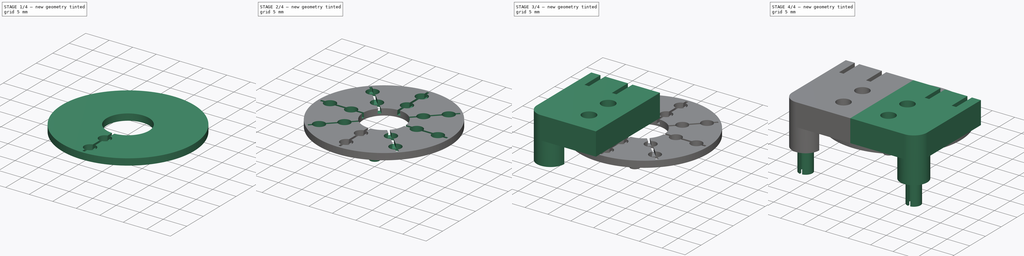
[diagram: build sequence overview — one tinted view per stage of 4, left to right]
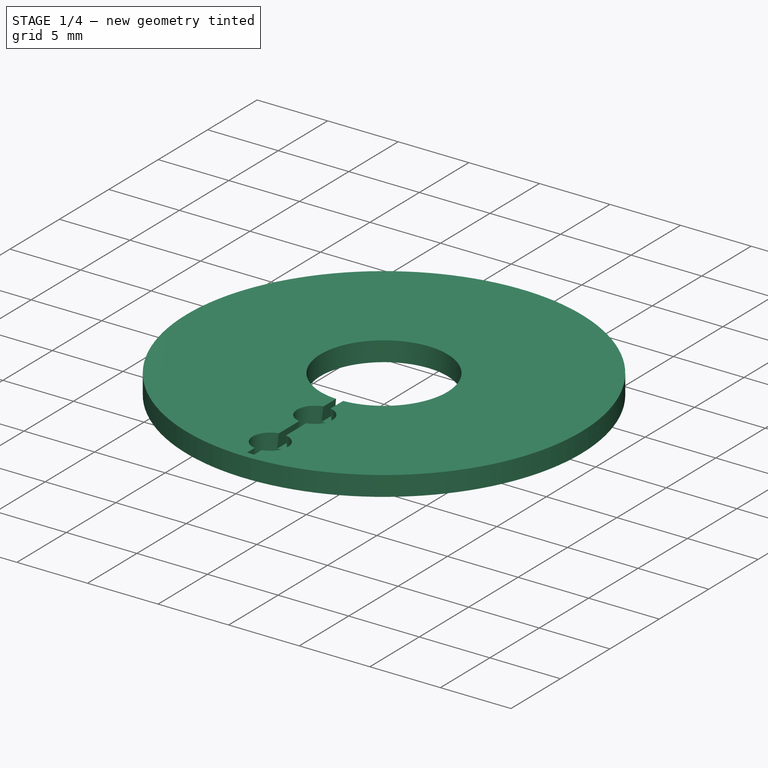
[diagram: stage 1 of 4 — iso view after this stage's code; geometry added in this stage tinted green]
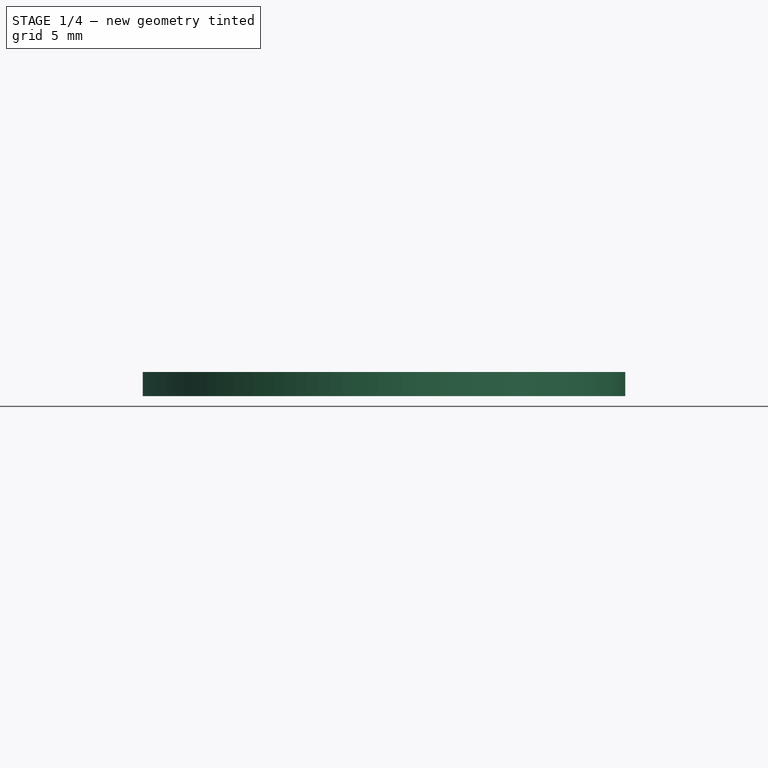
[diagram: stage 1 of 4 — front view after this stage's code; geometry added in this stage tinted green]
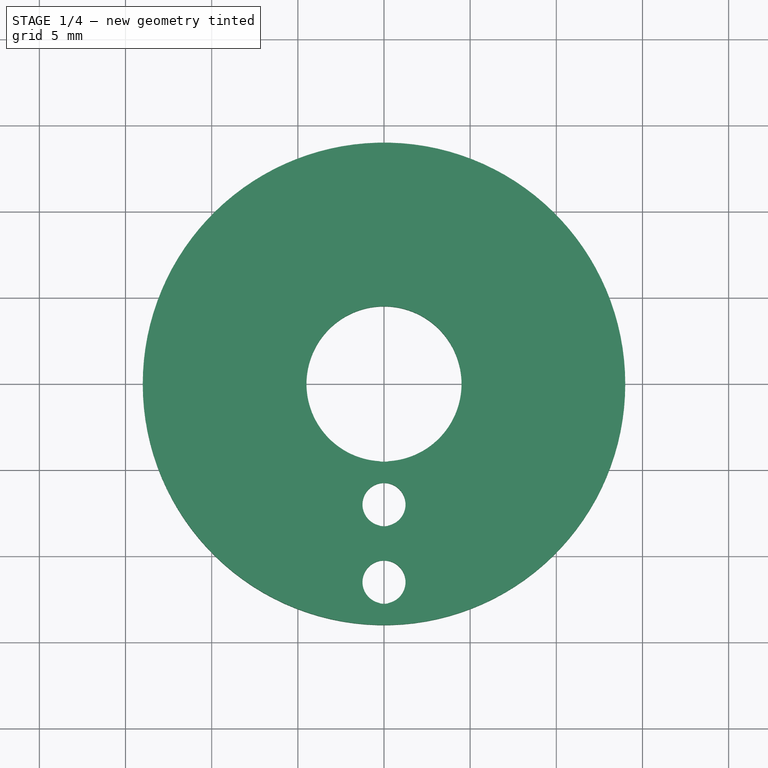
[diagram: stage 1 of 4 — top view after this stage's code; geometry added in this stage tinted green]
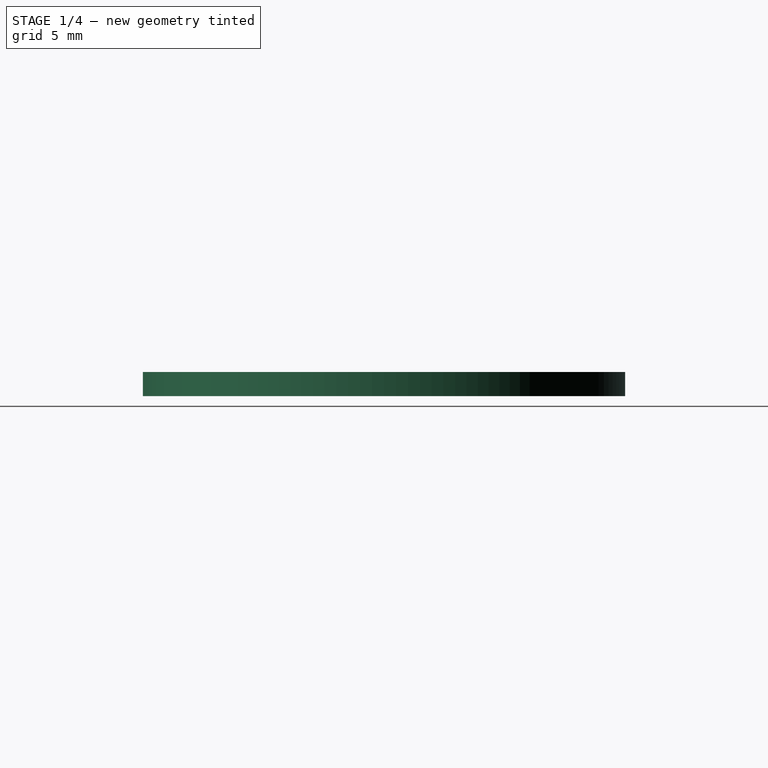
[diagram: stage 1 of 4 — right view after this stage's code; geometry added in this stage tinted green]
FCSTD DOCUMENT  (FreeCAD 0.21R33694 (Git))
Label: sparkgap
License: All rights reserved
LicenseURL: https://en.wikipedia.org/wiki/All_rights_reserved
objects: Sketcher::SketchObject×8, PartDesign::Pad×5, PartDesign::Pocket×3, PartDesign::Body×2, PartDesign::PolarPattern×2, PartDesign::Mirrored×1
note: 29 computed .brp shape members not serialized (recipe doc carries the construction recipe); baked Part::Feature solids carry a one-line shape summary decoded from their .brp

FEATURE [PartDesign::Body] Body
  Group = -> [Sketch,Pad,Sketch001,Pad001,Sketch002,Pad002,Sketch003,Pocket,Mirrored]
  Origin = -> Origin
  Tip = -> Mirrored
FEATURE [Sketcher::SketchObject] Sketch004
  FullyConstrained = true
  MapMode = 5
  Support = -> [XY_Plane001]
  sketch-geometry (2):
    g0: Circle CenterX=0 CenterY=15 CenterZ=0 NormalX=0 NormalY=0 NormalZ=1 AngleXU=0 Radius=14
    g1: Circle CenterX=0 CenterY=15 CenterZ=0 NormalX=0 NormalY=0 NormalZ=1 AngleXU=0 Radius=4.5
  constraints (5):
    c: PointOnObject(g0,g-2)
    c: Distance(g0,g-1) = 15
    c: Diameter(g0) = 28
    c: Coincident(g1,g0)
    c: Diameter(g1) = 9
FEATURE [PartDesign::Pad] Pad003  label="disc"
  Direction = (0,0,1)
  Length = 1.4
  Length2 = 10
  Profile = -> Sketch004
  ReferenceAxis = -> Sketch004 [N_Axis]
  Reversed = true
  Type = 0
FEATURE [Sketcher::SketchObject] Sketch005
  FullyConstrained = true
  MapMode = 5
  Support = -> [XY_Plane001]
  sketch-geometry (4):
    g0: LineSegment StartX=-0.25 StartY=1.5 StartZ=0 EndX=0.25 EndY=1.5 EndZ=0
    g1: LineSegment StartX=0.25 StartY=1.5 StartZ=0 EndX=0.25 EndY=11.5 EndZ=0
    g2: LineSegment StartX=0.25 StartY=11.5 StartZ=0 EndX=-0.25 EndY=11.5 EndZ=0
    g3: LineSegment StartX=-0.25 StartY=11.5 StartZ=0 EndX=-0.25 EndY=1.5 EndZ=0
  constraints (11):
    c: Horizontal(g0)
    c: Coincident(g1,g0)
    c: Vertical(g1)
    c: Coincident(g2,g1)
    c: Coincident(g3,g2)
    c: Coincident(g3,g0)
    c: Vertical(g3)
    c: Distance(g2) = 0.5
    c: Symmetric(g1,g2,g-2)
    c: Distance(g1) = 10
    c: Distance(g0,g-1) = 1.5
FEATURE [PartDesign::Pocket] Pocket001  label="slot"
  BaseFeature = -> Pad003
  Direction = (0,0,-1)
  Length = 1
  Length2 = 5
  Profile = -> Sketch005
  ReferenceAxis = -> Sketch005 [N_Axis]
  TaperAngle = 6
  Type = 0
FEATURE [Sketcher::SketchObject] Sketch006
  FullyConstrained = true
  MapMode = 5
  Support = -> [XY_Plane001]
  sketch-geometry (2):
    g0: Circle CenterX=0 CenterY=3.5 CenterZ=0 NormalX=0 NormalY=0 NormalZ=1 AngleXU=0 Radius=1.25
    g1: Circle CenterX=0 CenterY=8 CenterZ=0 NormalX=0 NormalY=0 NormalZ=1 AngleXU=0 Radius=1.25
  constraints (6):
    c: PointOnObject(g0,g-2)
    c: Diameter(g0) = 2.5
    c: Distance(g0,g-1) = 3.5
    c: PointOnObject(g1,g-2)
    c: Distance(g1,g-1) = 8
    c: Diameter(g1) = 2.5
FEATURE [PartDesign::Pocket] Pocket002  label="hole"
  BaseFeature = -> Pocket001
  Direction = (0,0,-1)
  Length = 1.5
  Length2 = 5
  Profile = -> Sketch006
  ReferenceAxis = -> Sketch006 [N_Axis]
  Type = 0
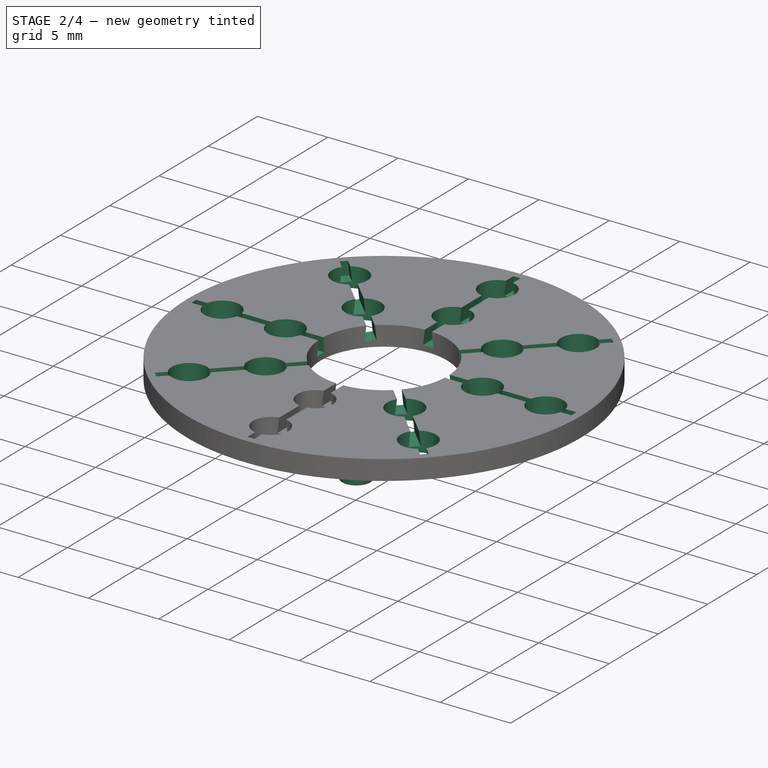
[diagram: stage 2 of 4 — iso view after this stage's code; geometry added in this stage tinted green]
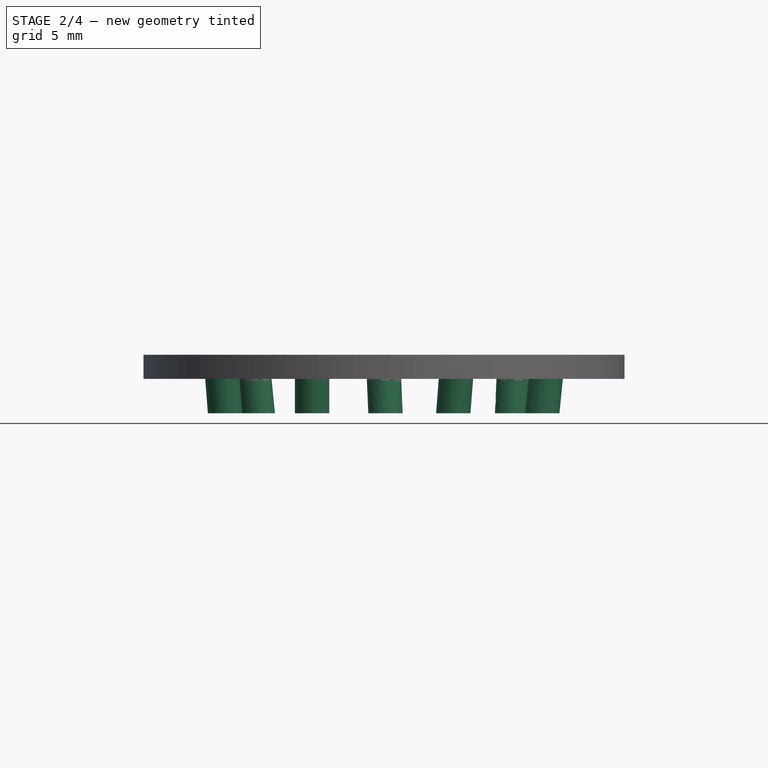
[diagram: stage 2 of 4 — front view after this stage's code; geometry added in this stage tinted green]
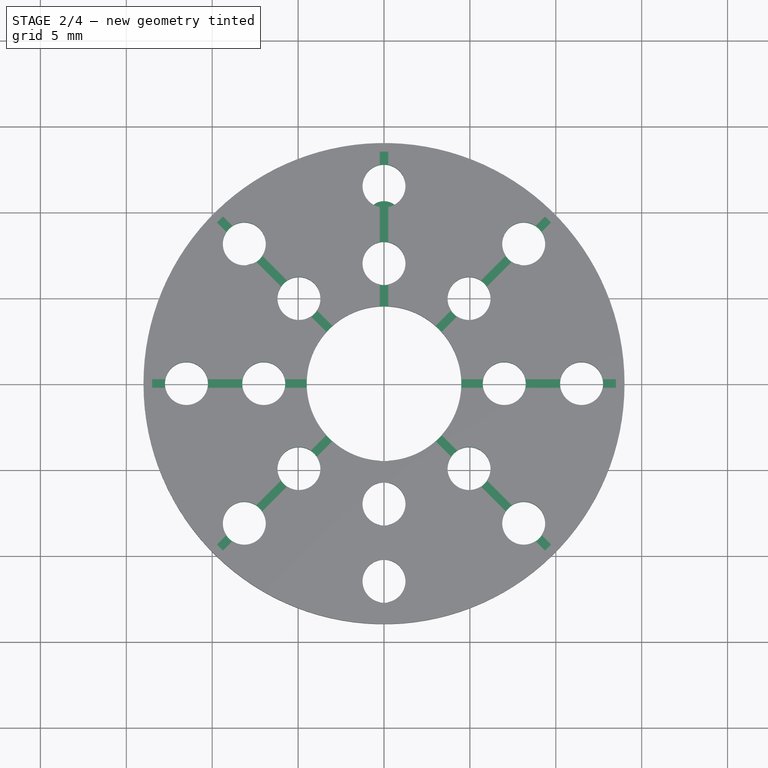
[diagram: stage 2 of 4 — top view after this stage's code; geometry added in this stage tinted green]
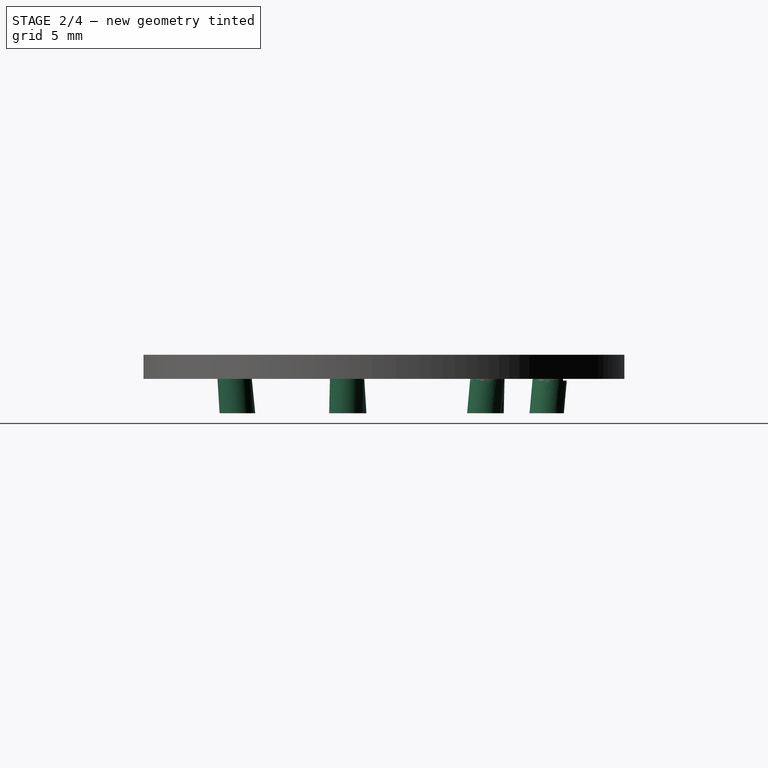
[diagram: stage 2 of 4 — right view after this stage's code; geometry added in this stage tinted green]
FEATURE [Sketcher::SketchObject] Sketch007
  AttachmentOffset = pos=(0,0,-1.4) rot=(0,0,1;0rad)
  FullyConstrained = true
  MapMode = 5
  Placement = pos=(0,0,-1.4) rot=(0,0,1;0rad)
  Support = -> [XY_Plane001]
  sketch-geometry (3):
    g0: LineSegment StartX=0 StartY=15 StartZ=0 EndX=-4.18698 EndY=6.30565 EndZ=0
    g1: Circle CenterX=-4.18698 CenterY=6.30565 CenterZ=0 NormalX=0 NormalY=0 NormalZ=1 AngleXU=0 Radius=0.6
    g2: Circle CenterX=-4.18698 CenterY=6.30565 CenterZ=0 NormalX=0 NormalY=0 NormalZ=1 AngleXU=0 Radius=1
  constraints (8):
    c: PointOnObject(g0,g-2)
    c: Distance(g-1,g0) = 15
    c: Distance(g0) = 9.65
    c: Angle(g0,g-2) = 0.448799
    c: Coincident(g1,g0)
    c: Coincident(g2,g1)
    c: Diameter(g2) = 2
    c: Diameter(g1) = 1.2
FEATURE [PartDesign::Pad] Pad004  label="peg001"
  BaseFeature = -> Pocket002
  Direction = (0,-0.1,1)
  Length = 2
  Length2 = 10
  Profile = -> Sketch007
  ReferenceAxis = -> Sketch007 [N_Axis]
  Reversed = true
  Type = 0
  UseCustomVector = true
FEATURE [PartDesign::PolarPattern] PolarPattern
  Angle = 360
  Axis = -> Pad003 [Edge6]
  BaseFeature = -> Pad004
  Occurrences = 7
  Originals = -> [Pad004]
FEATURE [PartDesign::PolarPattern] PolarPattern001
  Angle = 360
  Axis = -> Pad003 [Edge6]
  BaseFeature = -> PolarPattern
  Occurrences = 8
  Originals = -> [Pocket001,Pocket002]
FEATURE [PartDesign::Body] Body001  label="triggerwheel"
  Group = -> [Sketch004,Pad003,Sketch005,Pocket001,Sketch006,Pocket002,Sketch007,Pad004,PolarPattern,PolarPattern001]
  Origin = -> Origin001
  Tip = -> PolarPattern001
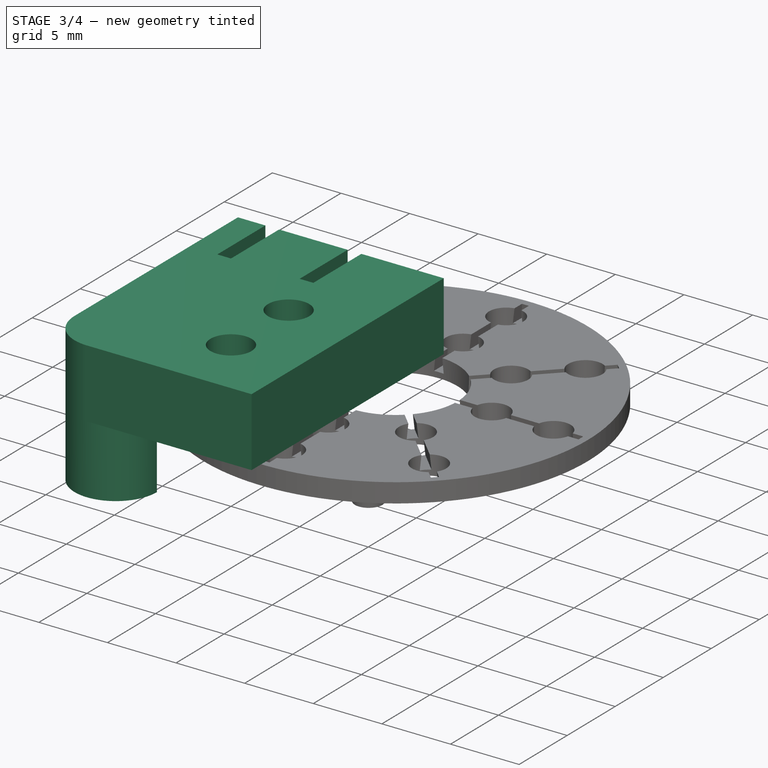
[diagram: stage 3 of 4 — iso view after this stage's code; geometry added in this stage tinted green]
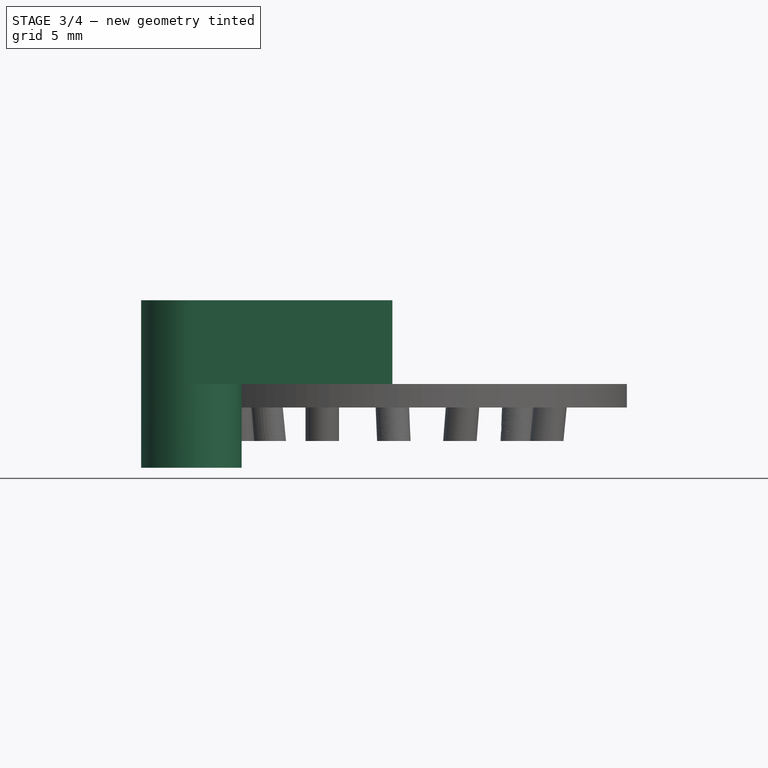
[diagram: stage 3 of 4 — front view after this stage's code; geometry added in this stage tinted green]
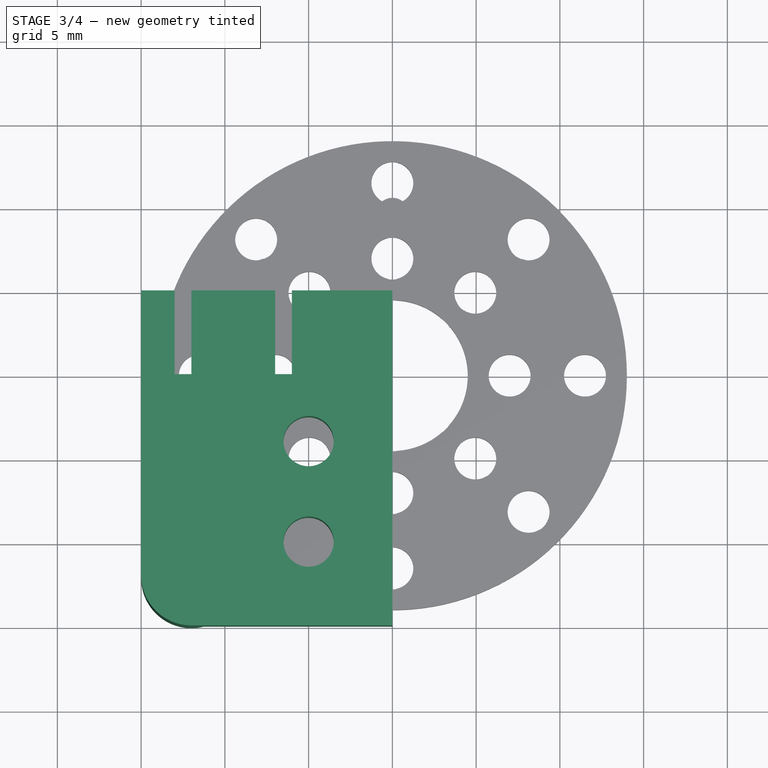
[diagram: stage 3 of 4 — top view after this stage's code; geometry added in this stage tinted green]
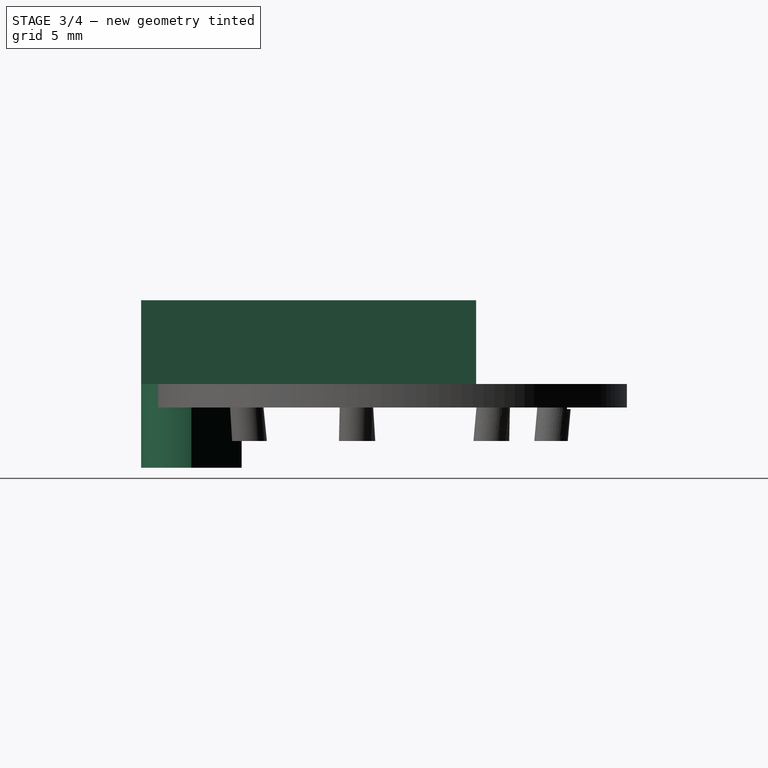
[diagram: stage 3 of 4 — right view after this stage's code; geometry added in this stage tinted green]
FEATURE [Sketcher::SketchObject] Sketch
  FullyConstrained = true
  MapMode = 5
  Support = -> [XY_Plane]
  sketch-geometry (17):
    g0: LineSegment StartX=0 StartY=1.892e-13 StartZ=0 EndX=-12 EndY=1.892e-13 EndZ=0
    g1: LineSegment StartX=-15 StartY=3 StartZ=0 EndX=-15 EndY=20 EndZ=0
    g2: LineSegment StartX=-15 StartY=20 StartZ=0 EndX=0 EndY=20 EndZ=0
    g3: LineSegment StartX=0 StartY=20 StartZ=0 EndX=0 EndY=1.883e-13 EndZ=0
    g4: LineSegment StartX=-15 StartY=15 StartZ=0 EndX=0 EndY=15 EndZ=0
    g5: LineSegment StartX=-15 StartY=20 StartZ=0 EndX=-13 EndY=20 EndZ=0
    g6: LineSegment StartX=-13 StartY=20 StartZ=0 EndX=-13 EndY=15 EndZ=0
    g7: LineSegment StartX=-13 StartY=15 StartZ=0 EndX=-12 EndY=15 EndZ=0
    g8: LineSegment StartX=-12 StartY=15 StartZ=0 EndX=-12 EndY=20 EndZ=0
    g9: LineSegment StartX=-12 StartY=20 StartZ=0 EndX=-7 EndY=20 EndZ=0
    g10: LineSegment StartX=-6 StartY=20 StartZ=0 EndX=-6 EndY=15 EndZ=0
    g11: LineSegment StartX=-6 StartY=15 StartZ=0 EndX=-7 EndY=15 EndZ=0
    g12: LineSegment StartX=-7 StartY=15 StartZ=0 EndX=-7 EndY=20 EndZ=0
    g13: LineSegment StartX=-6 StartY=20 StartZ=0 EndX=0 EndY=20 EndZ=0
    g14: Circle CenterX=-5 CenterY=11 CenterZ=0 NormalX=0 NormalY=0 NormalZ=1 AngleXU=0 Radius=1.5
    g15: Circle CenterX=-5 CenterY=5 CenterZ=0 NormalX=0 NormalY=0 NormalZ=1 AngleXU=0 Radius=1.5
    g16: ArcOfCircle CenterX=-12 CenterY=3 CenterZ=0 NormalX=0 NormalY=0 NormalZ=1 AngleXU=0 Radius=3 StartAngle=3.14159 EndAngle=4.71239
  constraints (49):
    c: Coincident(g1,g2)
    c: Coincident(g2,g3)
    c: Coincident(g3,g0)
    c: Horizontal(g0)
    c: Horizontal(g2)
    c: Vertical(g1)
    c: Vertical(g3)
    c: Coincident(g0,g-1)
    c: Distance(g2) = 15
    c: PointOnObject(g4,g1)
    c: PointOnObject(g4,g3)
    c: Horizontal(g4)
    c: Distance(g0,g4) = 15
    c: Coincident(g5,g1)
    c: Horizontal(g5)
    c: Coincident(g6,g5)
    c: Vertical(g6)
    c: Coincident(g7,g6)
    c: Horizontal(g7)
    c: Coincident(g8,g7)
    c: Vertical(g8)
    c: Coincident(g9,g8)
    c: Horizontal(g9)
    c: Vertical(g10)
    c: Coincident(g11,g10)
    c: Horizontal(g11)
    c: Coincident(g12,g11)
    c: Vertical(g12)
    c: PointOnObject(g6,g4)
    c: PointOnObject(g10,g4)
    c: Distance(g11) = 1
    c: Distance(g7) = 1
    c: Distance(g5) = 2
    c: Coincident(g13,g10)
    c: Coincident(g13,g3)
    c: Horizontal(g13)
    c: Distance(g9) = 5
    c: Diameter(g14) = 3
    c: Diameter(g15) = 3
    c: Distance(g14,g3) = 5
    c: Distance(g15,g3) = 5
    c: Distance(g14,g15) = 6
    c: Distance(g15,g0) = 5
    c: Tangent(g1,g16) = 1.5708
    c: Tangent(g0,g16) = 1.5708
    c: Diameter(g16) = 6
    c: Coincident(g12,g9)
    c: PointOnObject(g9,g2)
    c: Distance(g3,g4) = 5
FEATURE [PartDesign::Pad] Pad  label="main"
  Direction = (0,0,1)
  Length = 5
  Length2 = 10
  Profile = -> Sketch
  ReferenceAxis = -> Sketch [N_Axis]
  Type = 0
FEATURE [Sketcher::SketchObject] Sketch001
  FullyConstrained = true
  MapMode = 5
  Support = -> [XY_Plane]
  sketch-geometry (3):
    g0: ArcOfCircle CenterX=-12 CenterY=3 CenterZ=0 NormalX=0 NormalY=0 NormalZ=1 AngleXU=0 Radius=3 StartAngle=1.5708 EndAngle=6.28319
    g1: Circle CenterX=0 CenterY=15 CenterZ=0 NormalX=0 NormalY=0 NormalZ=1 AngleXU=0 Radius=15
    g2: LineSegment StartX=-12 StartY=6 StartZ=0 EndX=-9 EndY=3 EndZ=0
  constraints (12):
    c: Distance(g0,g-1) = 3
    c: Distance(g0,g-2) = 12
    c: Diameter(g0) = 6
    c: PointOnObject(g1,g-2)
    c: Diameter(g1) = 30
    c: Distance(g-1,g1) = 15
    c: PointOnObject(g2,g1)
    c: PointOnObject(g2,g0)
    c: PointOnObject(g2,g0)
    c: Angle(g-1,g2) = 2.35619
    c: PointOnObject(g0,g1)
    c: PointOnObject(g0,g1)
FEATURE [PartDesign::Pad] Pad001  label="stud"
  BaseFeature = -> Pad
  Direction = (0,0,1)
  Length = 5
  Length2 = 10
  Profile = -> Sketch001
  ReferenceAxis = -> Sketch001 [N_Axis]
  Reversed = true
  Type = 0
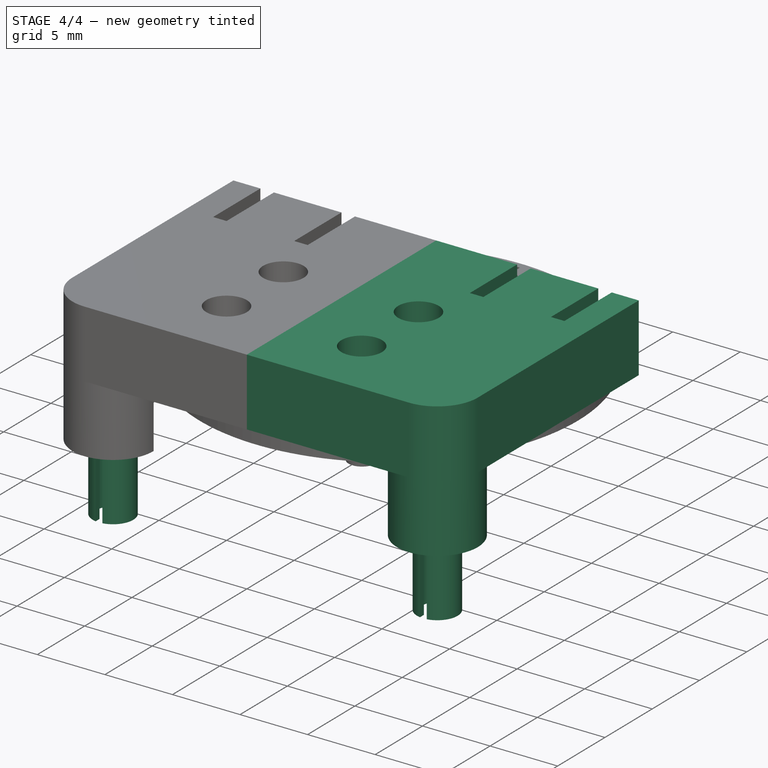
[diagram: stage 4 of 4 — iso view after this stage's code; geometry added in this stage tinted green]
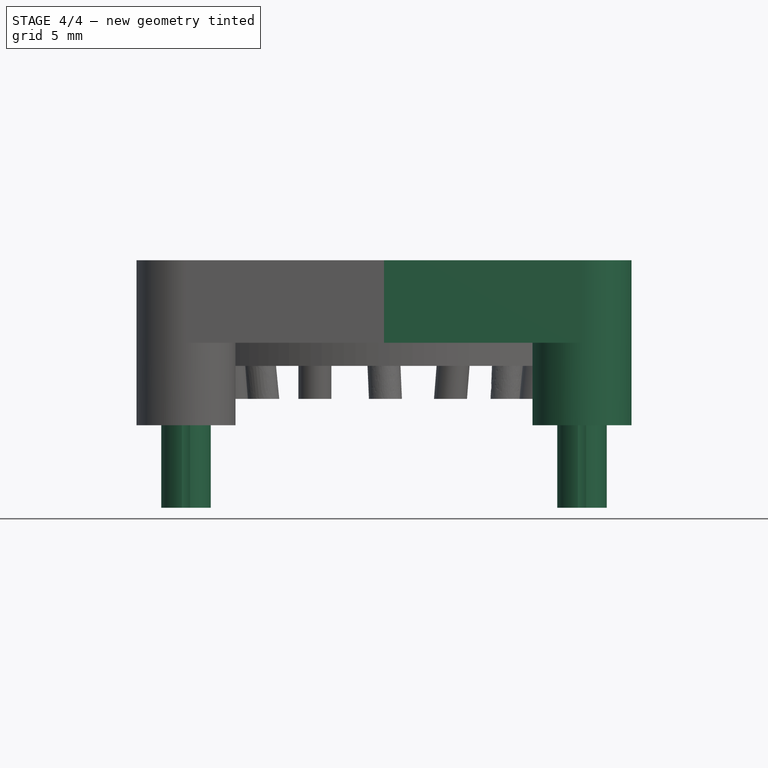
[diagram: stage 4 of 4 — front view after this stage's code; geometry added in this stage tinted green]
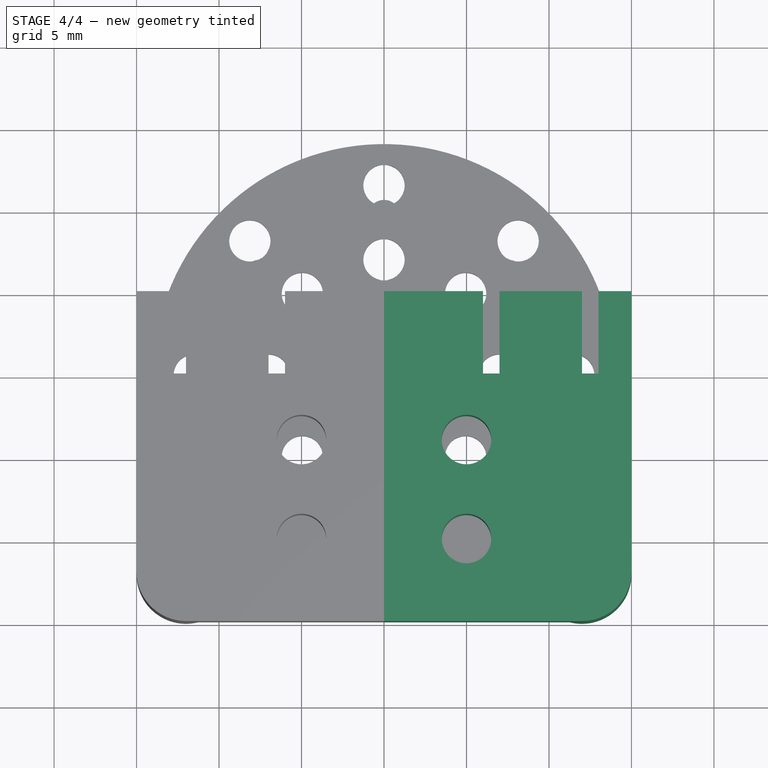
[diagram: stage 4 of 4 — top view after this stage's code; geometry added in this stage tinted green]
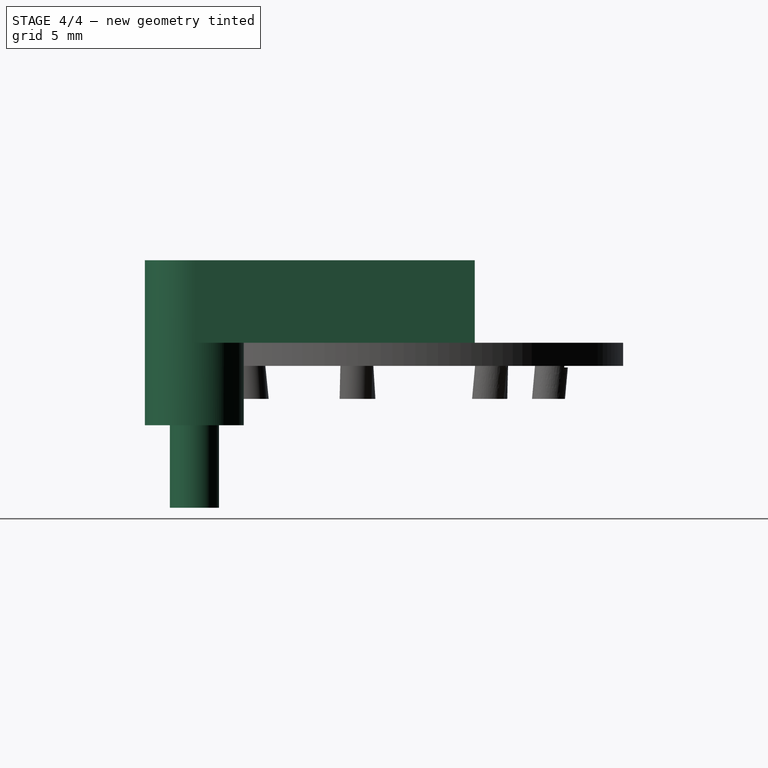
[diagram: stage 4 of 4 — right view after this stage's code; geometry added in this stage tinted green]
FEATURE [Sketcher::SketchObject] Sketch002
  FullyConstrained = true
  MapMode = 5
  Support = -> [XY_Plane]
  sketch-geometry (4):
    g0: ArcOfCircle CenterX=-12 CenterY=3 CenterZ=0 NormalX=0 NormalY=0 NormalZ=1 AngleXU=0 Radius=1.5 StartAngle=4.87984 EndAngle=10.8281
    g1: ArcOfCircle CenterX=-12 CenterY=3 CenterZ=0 NormalX=0 NormalY=0 NormalZ=1 AngleXU=0 Radius=1.1 StartAngle=4.94167 EndAngle=10.7663
    g2: LineSegment StartX=-12.25 StartY=1.52098 StartZ=0 EndX=-12.25 EndY=1.92879 EndZ=0
    g3: LineSegment StartX=-11.75 StartY=1.52098 StartZ=0 EndX=-11.75 EndY=1.92879 EndZ=0
  constraints (13):
    c: Coincident(g1,g0)
    c: Diameter(g0) = 3
    c: Diameter(g1) = 2.2
    c: Vertical(g2)
    c: Vertical(g3)
    c: Distance(g2,g3) = 0.5
    c: DistanceX(g0,g3) = 0.25
    c: Coincident(g0,g2)
    c: Coincident(g0,g3)
    c: Coincident(g1,g2)
    c: Coincident(g1,g3)
    c: Distance(g0,g-2) = 12
    c: Distance(g0,g-1) = 3
FEATURE [PartDesign::Pad] Pad002  label="peg"
  BaseFeature = -> Pad001
  Direction = (0,0,1)
  Length = 10
  Length2 = 10
  Profile = -> Sketch002
  ReferenceAxis = -> Sketch002 [N_Axis]
  Reversed = true
  Type = 0
FEATURE [Sketcher::SketchObject] Sketch003
  AttachmentOffset = pos=(0,0,-14) rot=(0,0,1;0rad)
  FullyConstrained = true
  MapMode = 5
  Placement = pos=(0,14,3.1e-15) rot=(1,0,0;1.5708rad)
  Support = -> [XZ_Plane]
  sketch-geometry (2):
    g0: Circle CenterX=-6.5 CenterY=2.5 CenterZ=0 NormalX=0 NormalY=0 NormalZ=1 AngleXU=0 Radius=1.4
    g1: Circle CenterX=-12.5 CenterY=2.5 CenterZ=0 NormalX=0 NormalY=0 NormalZ=1 AngleXU=0 Radius=1.4
  constraints (6):
    c: Diameter(g1) = 2.8
    c: DistanceY(g-1,g1) = 2.5
    c: Diameter(g0) = 2.8
    c: DistanceY(g-1,g0) = 2.5
    c: Distance(g0,g-2) = 6.5
    c: Distance(g0,g1) = 6
FEATURE [PartDesign::Pocket] Pocket  label="screwholes"
  BaseFeature = -> Pad002
  Direction = (0,1,2e-16)
  Length = 6
  Length2 = 5
  Profile = -> Sketch003
  ReferenceAxis = -> Sketch003 [N_Axis]
  Type = 0
FEATURE [PartDesign::Mirrored] Mirrored
  BaseFeature = -> Pocket
  MirrorPlane = -> Sketch [V_Axis]
  Originals = -> [Pad,Pad001,Pad002,Pocket]
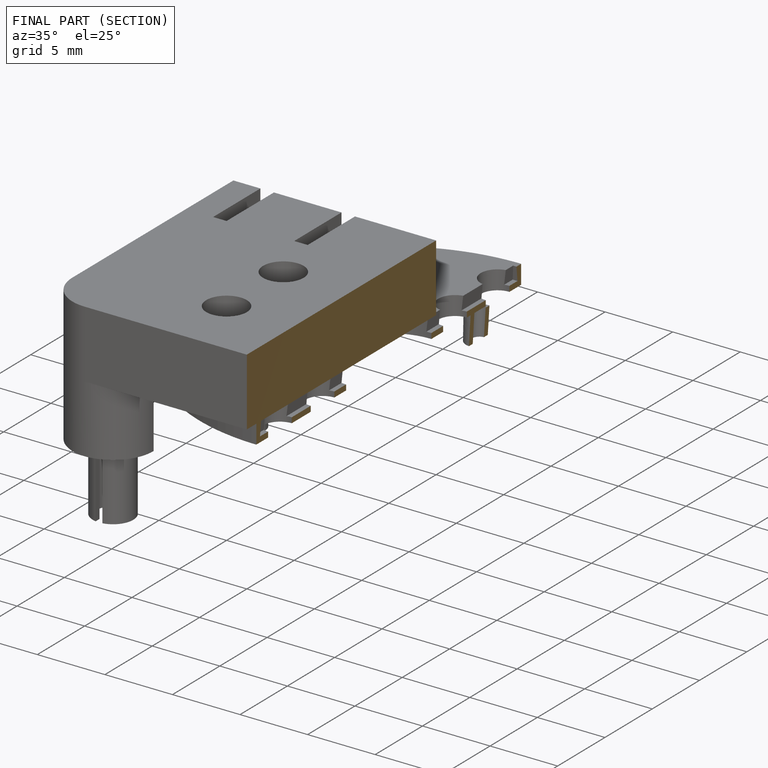
[diagram: finished part — half-section view (interior)]
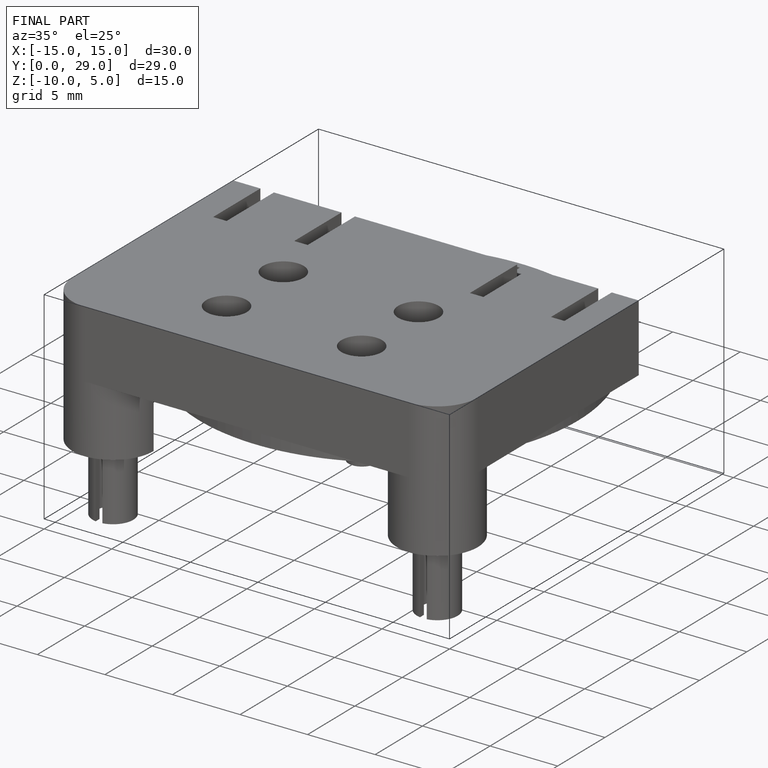
[diagram: finished part — iso view with bounding-box wireframe]
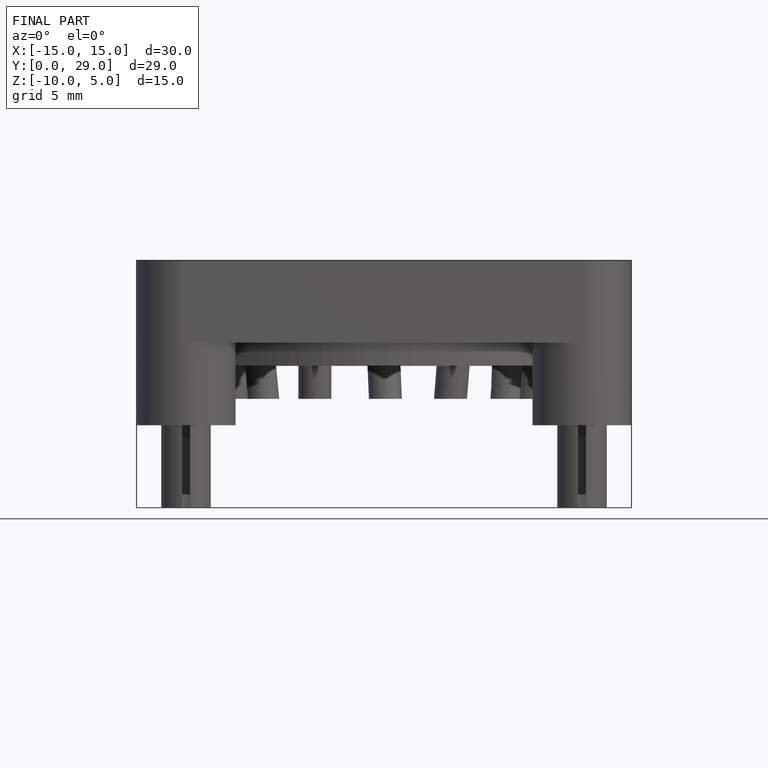
[diagram: finished part — front view with bounding-box wireframe]
